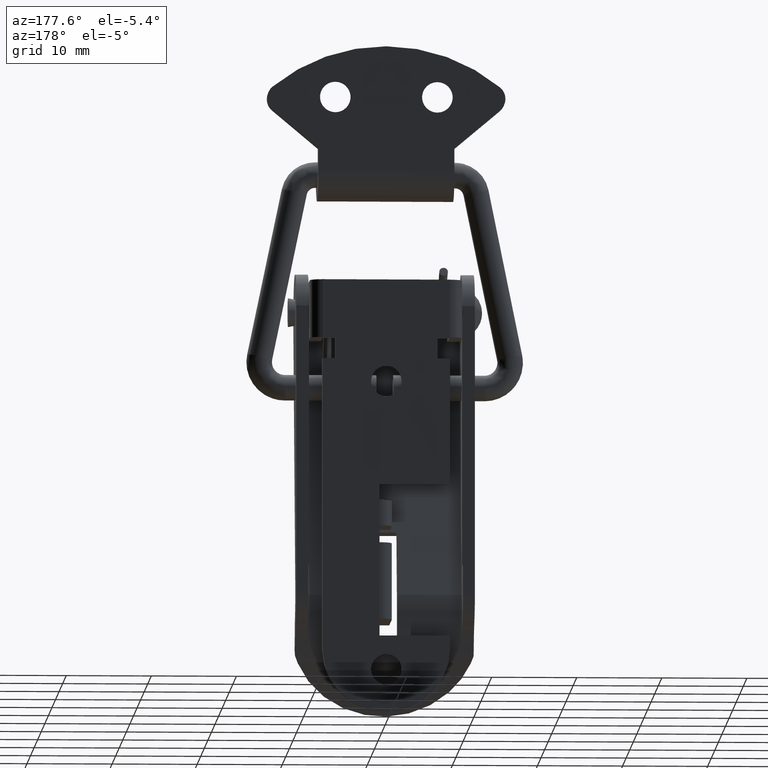
[diagram: clean part render]
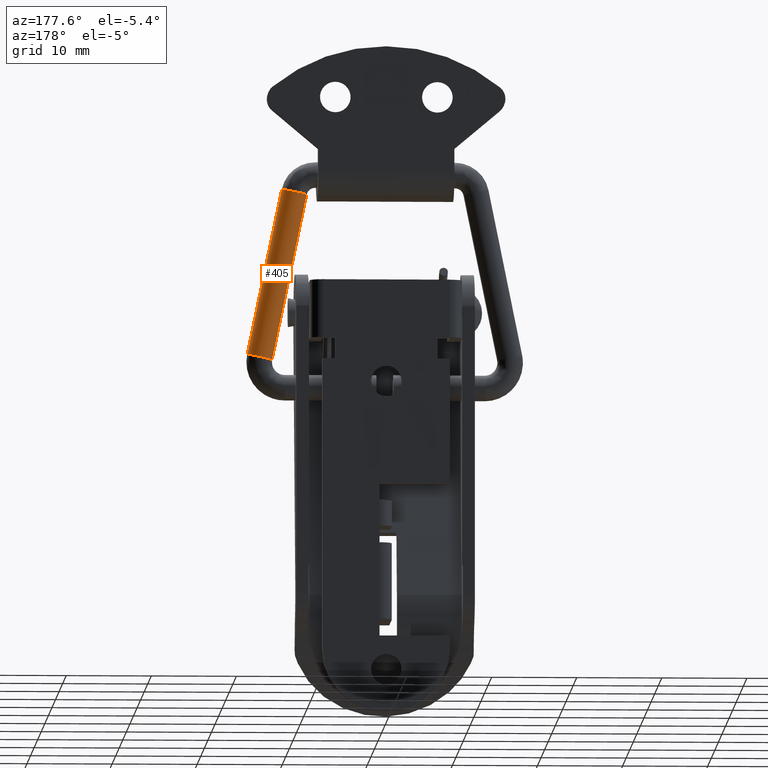
[diagram: same view with one face highlighted and labeled with its STEP entity id]
A machine part, auxiliary view. The second image highlights one B-rep face of the part: STEP entity #405.
In plain terms, the highlighted cylindrical surface (edge-blend (fillet) strip) has radius 1.5 mm, axis along (-0.2024, 0.062, 0.9773).
Its self-contained STEP definition (entity closure, byte-faithful):
#405=ADVANCED_FACE('',(#1903),#1902,.T.);
#1902=CYLINDRICAL_SURFACE('',#33578,1.50000000000E+00);
#1903=FACE_OUTER_BOUND('',#33579,.T.);
#33575=CARTESIAN_POINT('',(1.26831775492E+01,5.06261699229E-11,-1.01933790897E+01));
#33576=DIRECTION('',(-2.02407555476E-01,-0.00000000000E+00,9.79301374188E-01));
#33577=DIRECTION('',(-9.79301374188E-01,-3.34291554187E-14,-2.02407555476E-01));
#33578=AXIS2_PLACEMENT_3D('',#33575,#33576,#33577);
#33579=EDGE_LOOP('',(#34580,#34581,#34582,#34583,#34584));
#34580=ORIENTED_EDGE('',*,*,#35113,.T.);
#34581=ORIENTED_EDGE('',*,*,#35112,.T.);
#34582=ORIENTED_EDGE('',*,*,#35132,.T.);
#34583=ORIENTED_EDGE('',*,*,#35134,.F.);
#34584=ORIENTED_EDGE('',*,*,#35133,.F.);
#35112=EDGE_CURVE('',#37801,#37794,#37802,.T.);
#35113=EDGE_CURVE('',#37808,#37801,#37809,.T.);
#35132=EDGE_CURVE('',#37794,#37923,#37931,.T.);
#35133=EDGE_CURVE('',#37808,#37924,#37937,.T.);
#35134=EDGE_CURVE('',#37924,#37923,#37943,.T.);
#37794=VERTEX_POINT('',#40440);
#37801=VERTEX_POINT('',#40446);
#37802=CIRCLE('',#40450,1.50000000000E+00);
#37808=VERTEX_POINT('',#40451);
#37809=CIRCLE('',#40455,1.50000000000E+00);
#37923=VERTEX_POINT('',#40517);
#37924=VERTEX_POINT('',#40518);
#37931=(BOUNDED_CURVE() B_SPLINE_CURVE(1,(#40523,#40524),.UNSPECIFIED.,.F.,.F.) B_SPLINE_CURVE_WITH_KNOTS((2,2),(8.33333387964E-02,9.16666666047E-01),.UNSPECIFIED.) CURVE() GEOMETRIC_REPRESENTATION_ITEM() RATIONAL_B_SPLINE_CURVE((1.00000000000E+00,1.00000000000E+00)) REPRESENTATION_ITEM('') );
#37937=(BOUNDED_CURVE() B_SPLINE_CURVE(1,(#40525,#40526),.UNSPECIFIED.,.F.,.F.) B_SPLINE_CURVE_WITH_KNOTS((2,2),(8.33333376313E-02,9.16666666667E-01),.UNSPECIFIED.) CURVE() GEOMETRIC_REPRESENTATION_ITEM() RATIONAL_B_SPLINE_CURVE((7.50000000000E-01,7.50000000000E-01)) REPRESENTATION_ITEM('') );
#37943=CIRCLE('',#40530,1.50000000000E+00);
#40440=CARTESIAN_POINT('',(1.32189519785E+01,3.00407548998E-10,-2.01963882666E+01));
#40446=CARTESIAN_POINT('',(1.46879041225E+01,1.50000000005E+00,-1.98927773336E+01));
#40447=CARTESIAN_POINT('',(1.46879040398E+01,5.06758263824E-11,-1.98927769334E+01));
#40448=DIRECTION('',(-2.02407555476E-01,-1.05924002856E-15,9.79301374188E-01));
#40449=DIRECTION('',(-9.97527736137E-12,1.00000000000E+00,-2.06066520386E-12));
#40450=AXIS2_PLACEMENT_3D('',#40447,#40448,#40449);
#40451=CARTESIAN_POINT('',(1.61568561011E+01,5.06758263824E-11,-1.95891656002E+01));
#40452=CARTESIAN_POINT('',(1.46879040674E+01,5.06261699229E-11,-1.98927770668E+01));
#40453=DIRECTION('',(-2.02407644403E-01,7.25752032803E-29,9.79301355808E-01));
#40454=DIRECTION('',(-9.79301355808E-01,-3.31043063336E-14,-2.02407644403E-01));
#40455=AXIS2_PLACEMENT_3D('',#40452,#40453,#40454);
#40517=CARTESIAN_POINT('',(9.20949896942E+00,5.06751677657E-11,-7.97592444525E-01));
#40518=CARTESIAN_POINT('',(1.21474030920E+01,5.06762272932E-11,-1.90369778097E-01));
#40523=CARTESIAN_POINT('',(1.32189519798E+01,5.05760261898E-11,-2.01963882728E+01));
#40524=CARTESIAN_POINT('',(9.20949897246E+00,5.05760261898E-11,-7.97592458949E-01));
#40525=CARTESIAN_POINT('',(1.61568561080E+01,5.06764013469E-11,-1.95891656335E+01));
#40526=CARTESIAN_POINT('',(1.21474030920E+01,5.06761546306E-11,-1.90369778086E-01));
#40527=CARTESIAN_POINT('',(1.06784510307E+01,5.06758263824E-11,-4.93981111311E-01));
#40528=DIRECTION('',(-2.02407555476E-01,-4.38256113238E-26,9.79301374188E-01));
#40529=DIRECTION('',(9.79301374188E-01,3.89734518482E-16,2.02407555476E-01));
#40530=AXIS2_PLACEMENT_3D('',#40527,#40528,#40529);